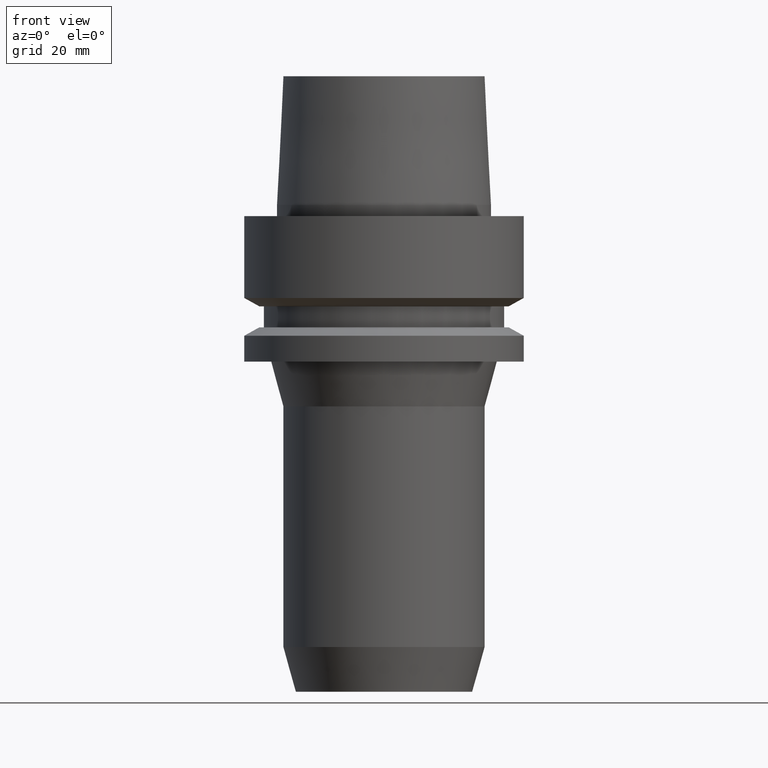
[diagram: clean part render]
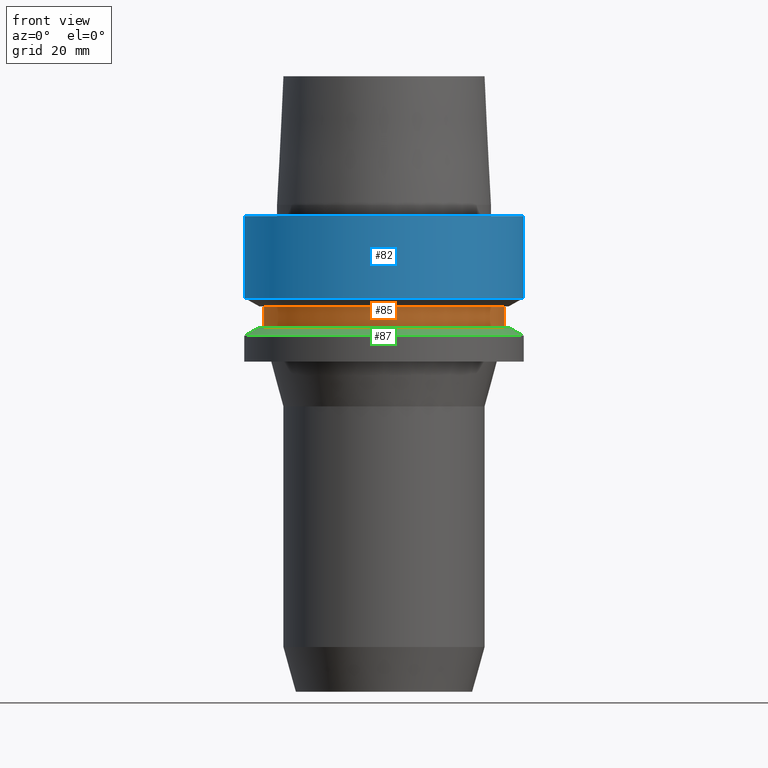
[diagram: same view with three faces highlighted in distinct colors, each labeled with its STEP entity id]
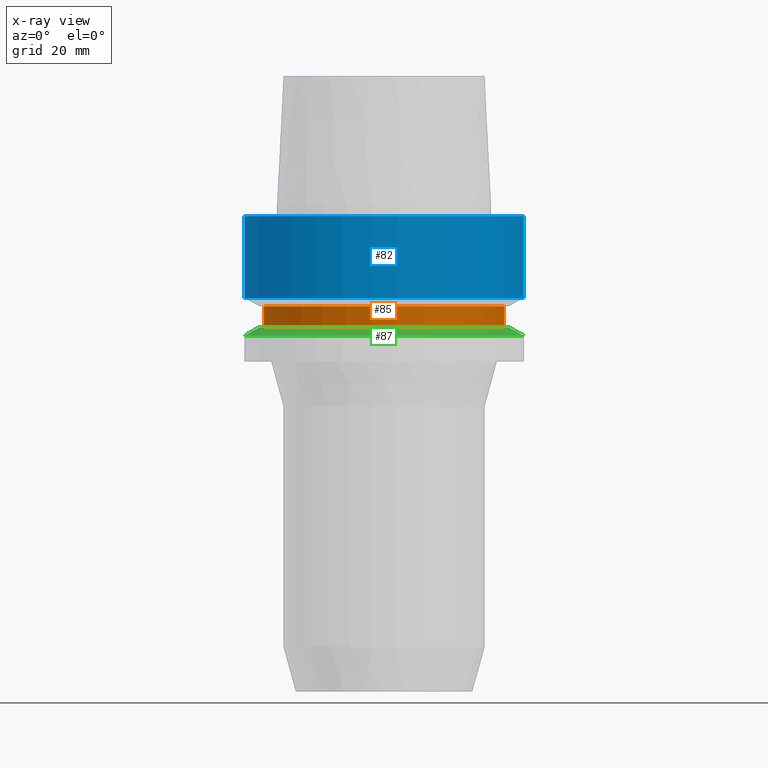
[diagram: x-ray of the same camera — body ghosted, the three highlighted faces saturated]
A machine part, front view with three faces highlighted in distinct colors.
The next image is the same camera in x-ray (body ghosted, the three faces saturated) — at least one of them is partly hidden behind the body in this view.
Their STEP definitions:

[orange] entity #85 — the highlighted cylindrical surface (bore or boss wall) has radius 21.5 mm, axis along (-0, -0, 1).
#85=ADVANCED_FACE('',(#120,#121),#122,.T.);
#120=FACE_BOUND('',#166,.T.);
#121=FACE_BOUND('',#167,.T.);
#122=CYLINDRICAL_SURFACE('',#168,21.5);
#166=EDGE_LOOP('',(#232));
#167=EDGE_LOOP('',(#233));
#168=AXIS2_PLACEMENT_3D('',#234,#235,#236);
#232=ORIENTED_EDGE('',*,*,#272,.F.);
#233=ORIENTED_EDGE('',*,*,#271,.T.);
#234=CARTESIAN_POINT('',(1.10218211923262E-015,2.20436423846524E-015,-18.0));
#235=DIRECTION('',(-6.12323399573677E-017,-1.22464679914735E-016,1.0));
#236=DIRECTION('',(-1.23259516440783E-032,1.0,1.22464679914735E-016));
#271=EDGE_CURVE('',#295,#295,#296,.T.);
#272=EDGE_CURVE('',#297,#297,#298,.T.);
#295=VERTEX_POINT('',#325);
#296=CIRCLE('',#326,21.5);
#297=VERTEX_POINT('',#327);
#298=CIRCLE('',#328,21.5);
#325=CARTESIAN_POINT('',(9.87371481812553E-016,21.5,-16.125));
#326=AXIS2_PLACEMENT_3D('',#364,#365,#366);
#327=CARTESIAN_POINT('',(1.21699275665268E-015,21.5,-19.875));
#328=AXIS2_PLACEMENT_3D('',#367,#368,#369);
#364=CARTESIAN_POINT('',(9.87371481812554E-016,1.97474296362511E-015,-16.125));
#365=DIRECTION('',(6.12323399573677E-017,1.22464679914735E-016,-1.0));
#366=DIRECTION('',(-1.23259516440783E-032,1.0,1.22464679914735E-016));
#367=CARTESIAN_POINT('',(1.21699275665268E-015,2.43398551330536E-015,-19.875));
#368=DIRECTION('',(6.12323399573677E-017,1.22464679914735E-016,-1.0));
#369=DIRECTION('',(-1.23259516440783E-032,1.0,1.22464679914735E-016));

[blue] entity #82 — the highlighted cylindrical surface (bore or boss wall) has radius 25 mm, axis along (-0, -0, 1).
#82=ADVANCED_FACE('',(#111,#112),#113,.T.);
#111=FACE_BOUND('',#157,.T.);
#112=FACE_BOUND('',#158,.T.);
#113=CYLINDRICAL_SURFACE('',#159,25.0);
#157=EDGE_LOOP('',(#217));
#158=EDGE_LOOP('',(#218));
#159=AXIS2_PLACEMENT_3D('',#219,#220,#221);
#217=ORIENTED_EDGE('',*,*,#269,.F.);
#218=ORIENTED_EDGE('',*,*,#268,.T.);
#219=CARTESIAN_POINT('',(4.47684973986342E-016,8.95369947972685E-016,-7.311250465));
#220=DIRECTION('',(-6.12323399573677E-017,-1.22464679914735E-016,1.0));
#221=DIRECTION('',(-1.23259516440783E-032,1.0,1.22464679914735E-016));
#268=EDGE_CURVE('',#289,#289,#290,.T.);
#269=EDGE_CURVE('',#291,#291,#292,.T.);
#289=VERTEX_POINT('',#319);
#290=CIRCLE('',#320,25.0);
#291=VERTEX_POINT('',#321);
#292=CIRCLE('',#322,25.0);
#319=CARTESIAN_POINT('',(-3.08148791101958E-031,25.0,3.06161699786838E-015));
#320=AXIS2_PLACEMENT_3D('',#355,#356,#357);
#321=CARTESIAN_POINT('',(8.95369947972684E-016,25.0,-14.62250093));
#322=AXIS2_PLACEMENT_3D('',#358,#359,#360);
#355=CARTESIAN_POINT('',(0.0,0.0,0.0));
#356=DIRECTION('',(6.12323399573677E-017,1.22464679914735E-016,-1.0));
#357=DIRECTION('',(-1.23259516440783E-032,1.0,1.22464679914735E-016));
#358=CARTESIAN_POINT('',(8.95369947972685E-016,1.79073989594537E-015,-14.62250093));
#359=DIRECTION('',(6.12323399573677E-017,1.22464679914735E-016,-1.0));
#360=DIRECTION('',(-1.23259516440783E-032,1.0,1.22464679914735E-016));

[green] entity #87 — the highlighted conical surface has half-angle 60 deg.
#87=ADVANCED_FACE('',(#126,#127),#128,.T.);
#126=FACE_BOUND('',#172,.T.);
#127=FACE_BOUND('',#173,.T.);
#128=CONICAL_SURFACE('',#174,23.69879763,1.04719755326565);
#172=EDGE_LOOP('',(#242));
#173=EDGE_LOOP('',(#243));
#174=AXIS2_PLACEMENT_3D('',#244,#245,#246);
#242=ORIENTED_EDGE('',*,*,#274,.F.);
#243=ORIENTED_EDGE('',*,*,#273,.T.);
#244=CARTESIAN_POINT('',(1.26299352357262E-015,2.52598704714523E-015,-20.626249535));
#245=DIRECTION('',(6.12323399573676E-017,1.22464679914735E-016,-1.0));
#246=DIRECTION('',(-1.23259516440783E-032,1.0,1.22464679914735E-016));
#273=EDGE_CURVE('',#299,#299,#300,.T.);
#274=EDGE_CURVE('',#301,#301,#302,.T.);
#299=VERTEX_POINT('',#329);
#300=CIRCLE('',#330,22.39759526);
#301=VERTEX_POINT('',#331);
#302=CIRCLE('',#332,25.0);
#329=CARTESIAN_POINT('',(1.21699275665268E-015,22.39759526,-19.875));
#330=AXIS2_PLACEMENT_3D('',#370,#371,#372);
#331=CARTESIAN_POINT('',(1.30899429049255E-015,25.0,-21.37749907));
#332=AXIS2_PLACEMENT_3D('',#373,#374,#375);
#370=CARTESIAN_POINT('',(1.21699275665268E-015,2.43398551330536E-015,-19.875));
#371=DIRECTION('',(6.12323399573677E-017,1.22464679914735E-016,-1.0));
#372=DIRECTION('',(-1.23259516440783E-032,1.0,1.22464679914735E-016));
#373=CARTESIAN_POINT('',(1.30899429049255E-015,2.6179885809851E-015,-21.37749907));
#374=DIRECTION('',(6.12323399573677E-017,1.22464679914735E-016,-1.0));
#375=DIRECTION('',(-1.23259516440783E-032,1.0,1.22464679914735E-016));